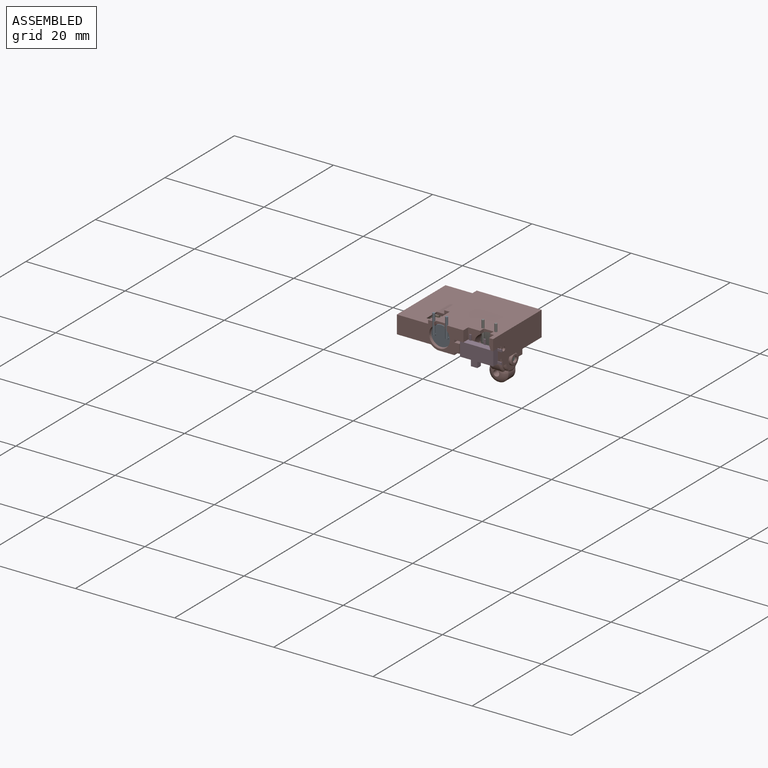
[diagram: assembled view]
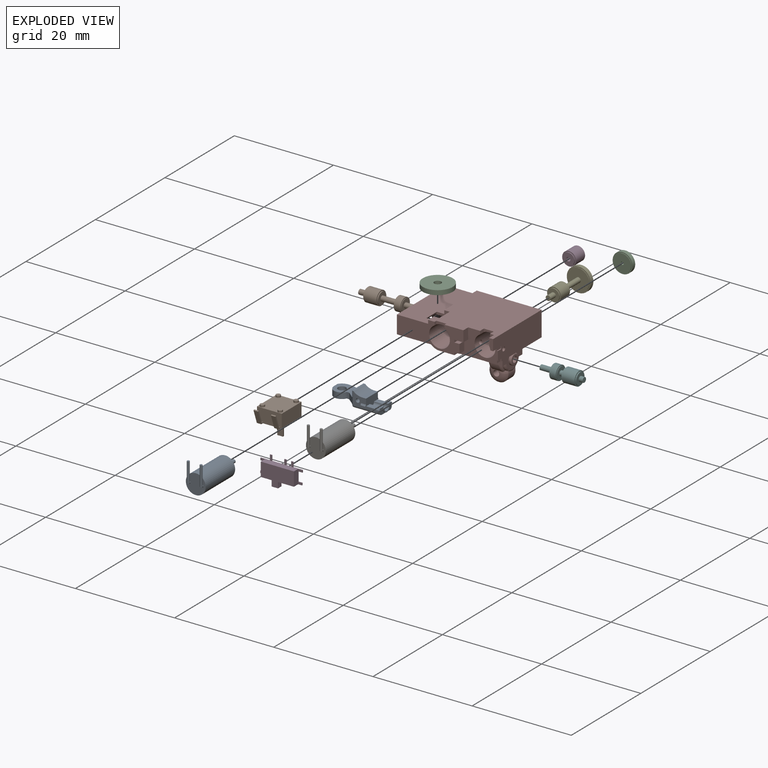
[diagram: exploded view]
GUIDED TOUR — MATED ASSEMBLY (Onshape document ec23bc95570d9c8ad12c1168, AutoMate assembly ec23bc95570d9c8ad12c1168_9f3f0885a3b1d8d422f5f965_d5d199825248745248bcec3c_default)

This assembly has 12 components, labeled P0..P11 below (a component is one placed occurrence of a part; the same part can appear more than once), held together by 23 mates. A mate is a constraint between two components; its type names the relative motion it leaves free:
  FASTENED — locks the two components together rigidly (no relative motion),
  PLANAR — leaves sliding in the plane through the listed point (normal = the listed direction) and rotation about that normal free,
  SLIDER — leaves translation along the listed axis free.
Axis/direction vectors are unit vectors and 'through' points are millimeter coordinates, both in the assembly's world frame.

MATES
  1. PLANAR "Planar 16": P7 <-> P3, direction (1.000, 0.000, 0.000) through (19.40, 0.07, 0.28) mm
  2. PLANAR "Planar 9": P5 <-> P7, direction (1.000, 0.000, 0.000) through (17.70, -0.42, -3.81) mm
  3. PLANAR "Planar 8": P6 <-> P2, direction (0.000, 1.000, 0.000) through (16.78, 5.00, 0.19) mm
  4. SLIDER "Slider 5": P9 <-> P10, axis (0.000, 0.000, 1.000) through (3.10, -0.07, -1.86) mm
  5. PLANAR "Planar 2": P9 <-> P7, direction (1.000, 0.000, 0.000) through (5.60, -0.42, -0.26) mm
  6. PLANAR "Planar 1": P7 <-> P9, direction (0.000, 0.000, -1.000) through (2.88, -1.22, 1.49) mm
  7. SLIDER "Slider 1": P7 <-> P1, axis (-1.000, 0.000, 0.000) through (0.00, 3.93, -2.31) mm
  8. PLANAR "Planar 5": P0 <-> P11, direction (0.000, 1.000, 0.000) through (8.60, 2.50, 0.19) mm
  9. PLANAR "Planar 4": P9 <-> P10, direction (0.000, 0.000, -1.000) through (3.10, -0.07, -1.86) mm
  10. PLANAR "Planar 10": P7 <-> P8, direction (0.000, 0.000, -1.000) through (9.51, -0.42, -2.31) mm
  11. SLIDER "Slider 3": P2 <-> P6, axis (0.000, -1.000, 0.000) through (16.78, 5.30, 0.19) mm
  12. SLIDER "Slider 2": P7 <-> P4, axis (0.000, -1.000, 0.000) through (13.00, 5.08, -1.11) mm
  13. PLANAR "Planar 15": P3 <-> P7, direction (0.000, 0.000, 1.000) through (16.04, -6.69, 0.49) mm
  14. FASTENED "Fastened 2": P6 <-> P7, direction (0.000, -1.000, 0.000) through (16.78, 4.08, 0.19) mm
  15. FASTENED "Fastened 1": P0 <-> P7, direction (0.000, -1.000, 0.000) through (8.60, 1.58, 0.19) mm
  16. PLANAR "Planar 11": P8 <-> P7, direction (0.000, 1.000, 0.000) through (8.43, 1.28, -3.29) mm
  17. PLANAR "Planar 7": P7 <-> P4, direction (0.000, 1.000, 0.000) through (13.00, 5.08, -1.11) mm
  18. PLANAR "Planar 3": P7 <-> P9, direction (0.000, -1.000, 0.000) through (3.10, 2.53, -0.06) mm
  19. PLANAR "Planar 6": P1 <-> P7, direction (1.000, 0.000, 0.000) through (9.30, 3.93, -2.31) mm
  20. PLANAR "Planar 13": P9 <-> P10, direction (0.000, 0.000, -1.000) through (3.10, -0.07, -1.86) mm
  21. SLIDER "Slider 4": P5 <-> P7, axis (-1.000, 0.000, 0.000) through (17.70, -0.42, -3.81) mm
  22. PLANAR "Planar 12": P7 <-> P8, direction (-1.000, 0.000, 0.000) through (6.70, 1.88, -2.86) mm
  23. PLANAR "Planar 14": P7 <-> P3, direction (0.000, -1.000, 0.000) through (14.88, -6.02, -0.41) mm

ASSEMBLY ORDER
  1. P7 — the base component [order heuristic]
  2. P1 — core [order heuristic]
  3. P8 — core [order heuristic]
  4. P5 — core [order heuristic]
  5. P6 — core [order heuristic]
  6. P9 — core [order heuristic]
  7. P4 — core [order heuristic]
  8. P2 — core [order heuristic]
  9. P10 — core [order heuristic]
  10. P3 [order verified]
  11. P0 [order verified]
  12. P11 [order verified]
(P3 verified with a relaxed clearance tolerance: the source model stores slight part interference there.)
Order-tag legend:
  [order verified] — this step's position reverses a verified removal order: the component was checked to insert without passing through the ones already placed.
  [order heuristic] — the first 9 components form the assembly's core: parts whose collision-free extraction could not be verified, listed in mate-graph order.

Of the 12 components, 6 carry the full construction recipe — the FeatureScript program that regenerates the part's solid from scratch; the rest are supplied as boundary geometry only.
Each toured component is shown spotlighted twice — in the assembled view, then in the exploded view, where a leader line traces a displaced component back to its assembled socket (saturated green if recipe-attached, orange if geometry-only; every other component desaturated gray) — followed by its recipe or geometry summary and the mates that hold it.
NOTE — document 2 of 2 of this assembly tour. The two overview renders and the header above are repeated from document 1; the component sections below continue where the previous document stopped.
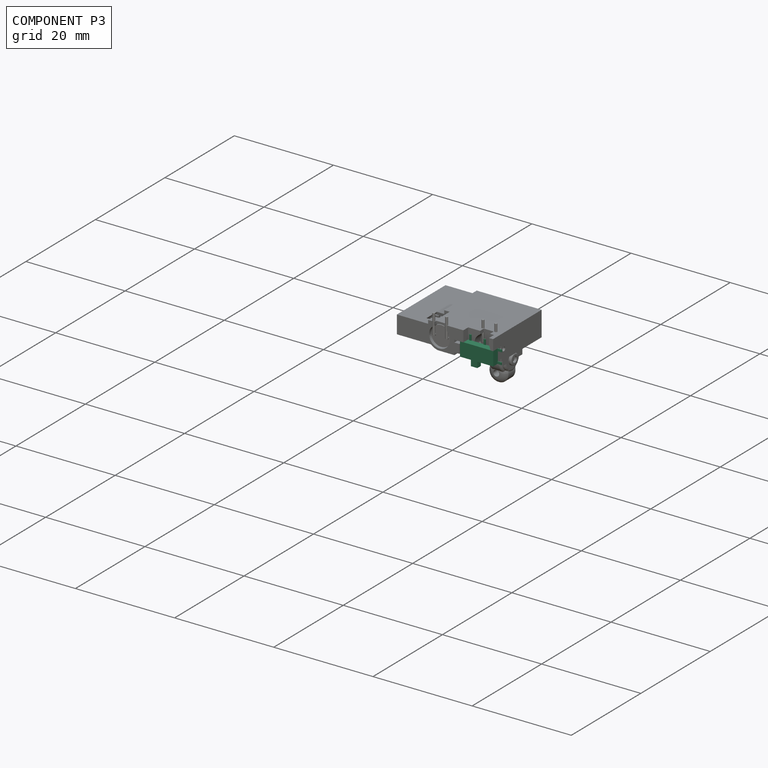
[diagram: component P3 — assembled]
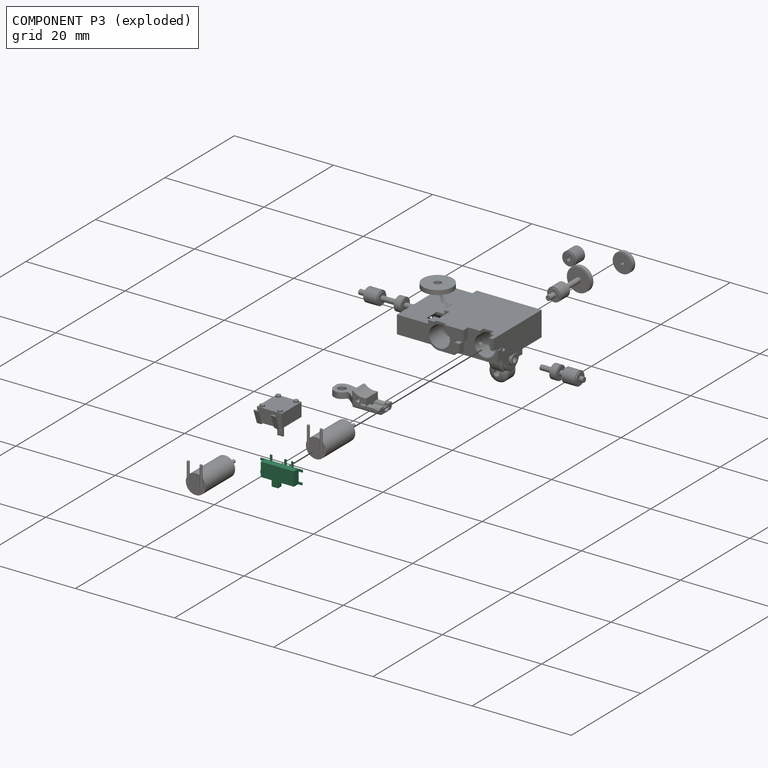
[diagram: component P3 — exploded]
COMPONENT P3 — recipe-attached (CADFS 00296082, mesh-verified: the recipe's output STEP matches this component's geometry to below the mesh-comparison resolution (tessellation chordal tolerance ~0.0152 mm)).
Held by: PLANAR mate "Planar 16" to P7; PLANAR mate "Planar 15" to P7; PLANAR mate "Planar 14" to P7.
Construction recipe (FeatureScript — the CAD program that rebuilds this solid; sketch coordinates are in the units given by the * unit suffixes, e.g. mm):

FeatureScript 1511;
import(path : "onshape/std/geometry.fs", version : "1511.0");
import(path : "onshape/std/common.fs", version : "1511.0");
const mm = millimeter;
const VERTEX = EntityType.VERTEX;
const EDGE = EntityType.EDGE;
const FACE = EntityType.FACE;
const BODY = EntityType.BODY;
function v(x, y){return vector(x, y);}
function OD(order){return orderDisambiguation(order);}
function OSD(set){return originalSetDisambiguation(set);}
function TD(topology){return topologyDisambiguation(topology);}
function TDD(query){return trueDependencyDisambiguation(query);}
function sQuery(a, b, c) {return sketchEntityQuery(a, b, c);}

annotation { "Feature Type Name" : "Feature", "Feature Type Description" : "" }
export const myFeature = defineFeature(function(context is Context, id is Id, definition is map)
    precondition{}
    {
        {
            var Q0;
            Q0=qCreatedBy(makeId("Top.planeOp"),FACE);
            var sketch = newSketch(context, id + "F0", { "sketchPlane" : qUnion([Q0])});
            skLineSegment(sketch, "E0.bottom", {"start": v(0, 0) * mm, "end": v(6.7, 0) * mm});
            skLineSegment(sketch, "E0.top", {"start": v(0, 2.8) * mm, "end": v(6.7, 2.8) * mm});
            skLineSegment(sketch, "E0.left", {"start": v(0, 0) * mm, "end": v(0, 2.8) * mm});
            skLineSegment(sketch, "E0.right", {"start": v(6.7, 0) * mm, "end": v(6.7, 2.8) * mm});
            skSolve(sketch);
        }
        {
            var Q0;
            Q0 = qSketchRegion(id + "F0", true);
            extrude(context, id + "F1", {"entities" : qUnion([Q0]), "depth" : 1.35 * mm});
        }
        {
            var Q0;
            Q0=qCreatedBy(makeId("Top.planeOp"),FACE);
            var sketch = newSketch(context, id + "F2", { "sketchPlane" : qUnion([Q0])});
            skLineSegment(sketch, "E1.bottom", {"start": v(5.7, 2.8) * mm, "end": v(5.3, 2.8) * mm});
            skLineSegment(sketch, "E1.top", {"start": v(5.7, 3.8) * mm, "end": v(5.3, 3.8) * mm});
            skLineSegment(sketch, "E1.left", {"start": v(5.7, 2.8) * mm, "end": v(5.7, 3.8) * mm});
            skLineSegment(sketch, "E1.right", {"start": v(5.3, 2.8) * mm, "end": v(5.3, 3.8) * mm});
            skLineSegment(sketch, "E2.bottom", {"start": v(4.3, 2.8) * mm, "end": v(3.9, 2.8) * mm});
            skLineSegment(sketch, "E2.top", {"start": v(4.3, 3.82) * mm, "end": v(3.9, 3.82) * mm});
            skLineSegment(sketch, "E2.left", {"start": v(4.3, 2.8) * mm, "end": v(4.3, 3.82) * mm});
            skLineSegment(sketch, "E2.right", {"start": v(3.9, 2.8) * mm, "end": v(3.9, 3.82) * mm});
            skLineSegment(sketch, "E3.bottom", {"start": v(1.4, 2.8) * mm, "end": v(1, 2.8) * mm});
            skLineSegment(sketch, "E3.top", {"start": v(1.4, 3.88) * mm, "end": v(1, 3.88) * mm});
            skLineSegment(sketch, "E3.left", {"start": v(1.4, 2.8) * mm, "end": v(1.4, 3.88) * mm});
            skLineSegment(sketch, "E3.right", {"start": v(1, 2.8) * mm, "end": v(1, 3.88) * mm});
            skLineSegment(sketch, "E4.bottom", {"start": v(6.7, 2.8) * mm, "end": v(7.58, 2.8) * mm});
            skLineSegment(sketch, "E4.top", {"start": v(6.7, 2.35) * mm, "end": v(7.58, 2.35) * mm});
            skLineSegment(sketch, "E4.left", {"start": v(6.7, 2.8) * mm, "end": v(6.7, 2.35) * mm});
            skLineSegment(sketch, "E4.right", {"start": v(7.58, 2.8) * mm, "end": v(7.58, 2.35) * mm});
            skLineSegment(sketch, "E5.bottom", {"start": v(6.7, 0.45) * mm, "end": v(7.5, 0.45) * mm});
            skLineSegment(sketch, "E5.top", {"start": v(6.7, 0) * mm, "end": v(7.5, 0) * mm});
            skLineSegment(sketch, "E5.left", {"start": v(6.7, 0.45) * mm, "end": v(6.7, 0) * mm});
            skLineSegment(sketch, "E5.right", {"start": v(7.5, 0.45) * mm, "end": v(7.5, 0) * mm});
            skLineSegment(sketch, "E6.bottom", {"start": v(0, 2.8) * mm, "end": v(-0.9, 2.8) * mm});
            skLineSegment(sketch, "E6.top", {"start": v(0, 2.35) * mm, "end": v(-0.9, 2.35) * mm});
            skLineSegment(sketch, "E6.left", {"start": v(0, 2.8) * mm, "end": v(0, 2.35) * mm});
            skLineSegment(sketch, "E6.right", {"start": v(-0.9, 2.8) * mm, "end": v(-0.9, 2.35) * mm});
            skLineSegment(sketch, "E7.bottom", {"start": v(0, 0.45) * mm, "end": v(-0.93, 0.45) * mm});
            skLineSegment(sketch, "E7.top", {"start": v(0, 0) * mm, "end": v(-0.93, 0) * mm});
            skLineSegment(sketch, "E7.left", {"start": v(0, 0.45) * mm, "end": v(0, 0) * mm});
            skLineSegment(sketch, "E7.right", {"start": v(-0.93, 0.45) * mm, "end": v(-0.93, 0) * mm});
            skSolve(sketch);
        }
        {
            var Q0;
            Q0 = qSketchRegion(id + "F2", true);
            extrude(context, id + "F3", {"entities" : qUnion([Q0]), "operationType" : NewBodyOperationType.ADD, "depth" : 0.15 * mm});
        }
        {
            var Q0;
            Q0=qCreatedBy(makeId("Top.planeOp"),FACE);
            var sketch = newSketch(context, id + "F4", { "sketchPlane" : qUnion([Q0])});
            skLineSegment(sketch, "E8.bottom", {"start": v(1.95, 0) * mm, "end": v(3.25, 0) * mm});
            skLineSegment(sketch, "E8.top", {"start": v(1.95, -1.35) * mm, "end": v(3.25, -1.35) * mm});
            skLineSegment(sketch, "E8.left", {"start": v(1.95, 0) * mm, "end": v(1.95, -1.35) * mm});
            skLineSegment(sketch, "E8.right", {"start": v(3.25, 0) * mm, "end": v(3.25, -1.35) * mm});
            skSolve(sketch);
        }
        {
            var Q0;
            Q0 = qSketchRegion(id + "F4", true);
            extrude(context, id + "F5", {"entities" : qUnion([Q0]), "operationType" : NewBodyOperationType.ADD, "depth" : 1 * mm});
        }
        {
            var Q0;
            Q0=makeQuery(id+"F5.boolean.opBoolean","MERGE",FACE,{"derivedFrom":[makeQuery(id+"F3.boolean.opBoolean","MERGE",FACE,{"derivedFrom":[makeQuery(id+"F1.opExtrude","CAP_FACE",FACE,{"disambiguationData":[OSD([sQuery(id+"F0.wireOp",EDGE,"E0.bottom"),sQuery(id+"F0.wireOp",EDGE,"E0.top"),sQuery(id+"F0.wireOp",EDGE,"E0.left"),sQuery(id+"F0.wireOp",EDGE,"E0.right")])],"isStart":true}),makeQuery(id+"F3.opExtrude","CAP_FACE",FACE,{"disambiguationData":[OSD([sQuery(id+"F2.wireOp",EDGE,"E1.bottom"),sQuery(id+"F2.wireOp",EDGE,"E1.top"),sQuery(id+"F2.wireOp",EDGE,"E1.left"),sQuery(id+"F2.wireOp",EDGE,"E1.right")])],"isStart":true}),makeQuery(id+"F3.opExtrude","CAP_FACE",FACE,{"disambiguationData":[OSD([sQuery(id+"F2.wireOp",EDGE,"E2.bottom"),sQuery(id+"F2.wireOp",EDGE,"E2.top"),sQuery(id+"F2.wireOp",EDGE,"E2.left"),sQuery(id+"F2.wireOp",EDGE,"E2.right")])],"isStart":true}),makeQuery(id+"F3.opExtrude","CAP_FACE",FACE,{"disambiguationData":[OSD([sQuery(id+"F2.wireOp",EDGE,"E3.bottom"),sQuery(id+"F2.wireOp",EDGE,"E3.top"),sQuery(id+"F2.wireOp",EDGE,"E3.left"),sQuery(id+"F2.wireOp",EDGE,"E3.right")])],"isStart":true}),makeQuery(id+"F3.opExtrude","CAP_FACE",FACE,{"disambiguationData":[OSD([sQuery(id+"F2.wireOp",EDGE,"E4.bottom"),sQuery(id+"F2.wireOp",EDGE,"E4.top"),sQuery(id+"F2.wireOp",EDGE,"E4.left"),sQuery(id+"F2.wireOp",EDGE,"E4.right")])],"isStart":true}),makeQuery(id+"F3.opExtrude","CAP_FACE",FACE,{"disambiguationData":[OSD([sQuery(id+"F2.wireOp",EDGE,"E5.bottom"),sQuery(id+"F2.wireOp",EDGE,"E5.top"),sQuery(id+"F2.wireOp",EDGE,"E5.left"),sQuery(id+"F2.wireOp",EDGE,"E5.right")])],"isStart":true}),makeQuery(id+"F3.opExtrude","CAP_FACE",FACE,{"disambiguationData":[OSD([sQuery(id+"F2.wireOp",EDGE,"E6.bottom"),sQuery(id+"F2.wireOp",EDGE,"E6.top"),sQuery(id+"F2.wireOp",EDGE,"E6.left"),sQuery(id+"F2.wireOp",EDGE,"E6.right")])],"isStart":true}),makeQuery(id+"F3.opExtrude","CAP_FACE",FACE,{"disambiguationData":[OSD([sQuery(id+"F2.wireOp",EDGE,"E7.bottom"),sQuery(id+"F2.wireOp",EDGE,"E7.top"),sQuery(id+"F2.wireOp",EDGE,"E7.left"),sQuery(id+"F2.wireOp",EDGE,"E7.right")])],"isStart":true})]}),makeQuery(id+"F5.opExtrude","CAP_FACE",FACE,{"disambiguationData":[OSD([sQuery(id+"F4.wireOp",EDGE,"E8.bottom"),sQuery(id+"F4.wireOp",EDGE,"E8.top"),sQuery(id+"F4.wireOp",EDGE,"E8.left"),sQuery(id+"F4.wireOp",EDGE,"E8.right")])],"isStart":true})]});
            var sketch = newSketch(context, id + "F6", { "sketchPlane" : qUnion([Q0])});
            skCircle(sketch, "E9", {"center": v(4.85, -1.4) * mm, "radius": 0.42 * mm});
            skCircle(sketch, "E10", {"center": v(1.85, -1.4) * mm, "radius": 0.42 * mm});
            skLineSegment(sketch, "E11", {"start": v(1.85, -1.4) * mm, "end": v(4.85, -1.4) * mm, "construction": true});
            skSolve(sketch);
        }
        {
            var Q0;
            Q0 = qSketchRegion(id + "F6", true);
            extrude(context, id + "F7", {"entities" : qUnion([Q0]), "operationType" : NewBodyOperationType.ADD, "depth" : 0.5 * mm});
        }
    });
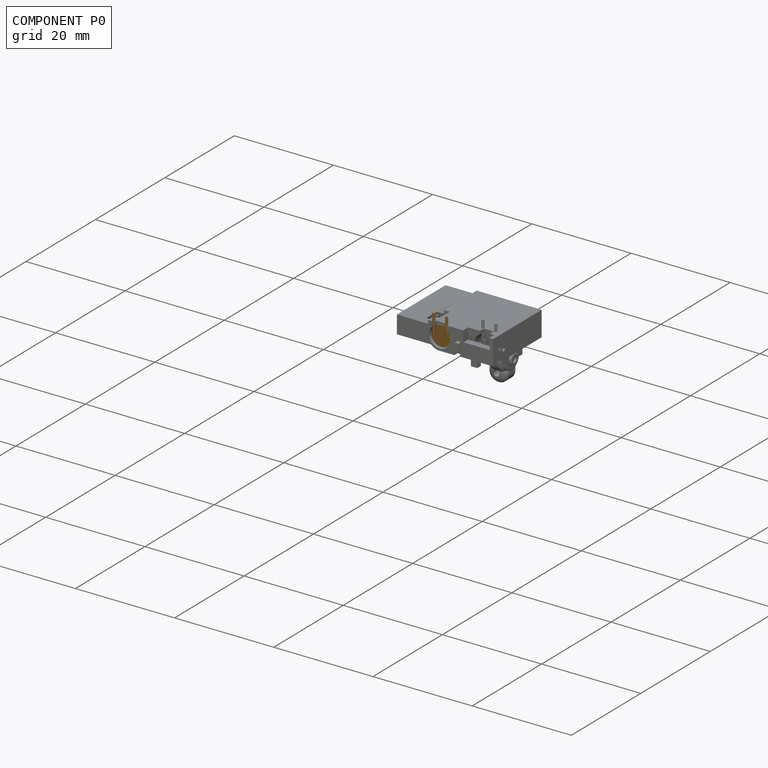
[diagram: component P0 — assembled]
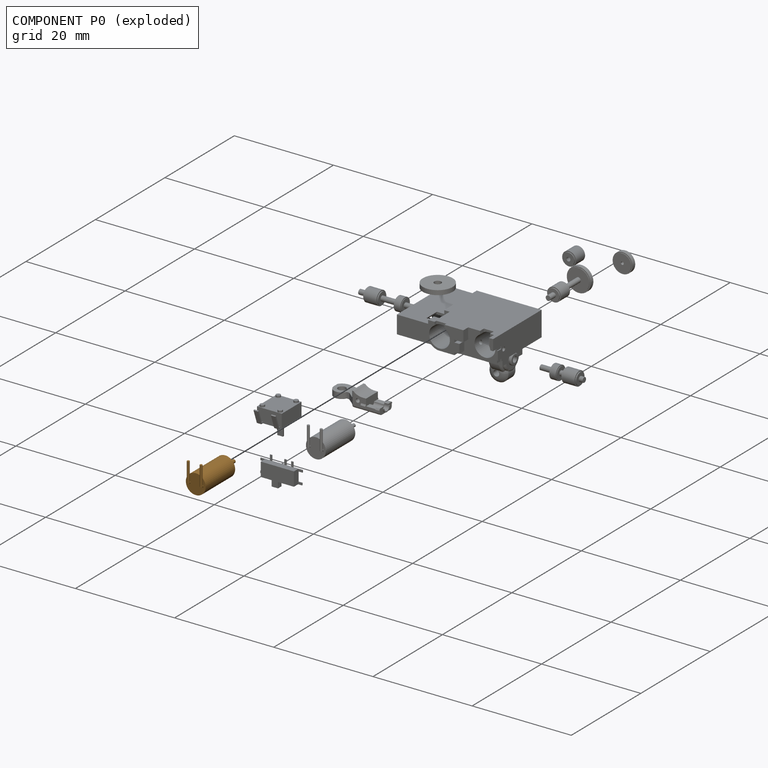
[diagram: component P0 — exploded]
COMPONENT P0 — geometry summary (no construction recipe available for this part):
  bounding box: 11.6 x 6.0 x 4.0 mm
  B-rep topology: 1 solid, 17 faces, 52 edges
  volume: 113 mm^3 (41% of its bounding box)
  symmetry: mirror-symmetric across its x mid-plane
Held by: PLANAR mate "Planar 5" to P11; FASTENED mate "Fastened 1" to P7.
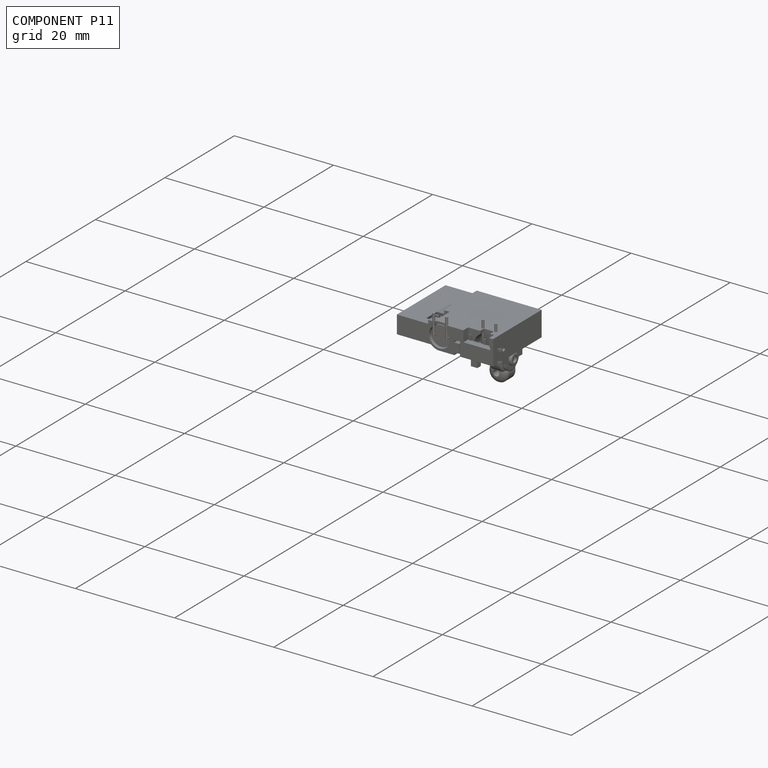
[diagram: component P11 — assembled]
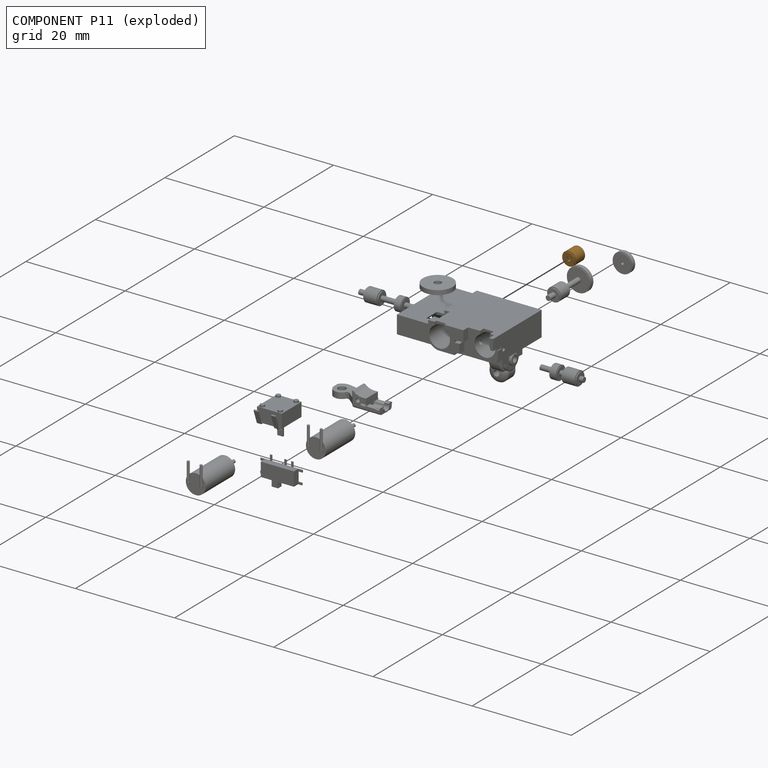
[diagram: component P11 — exploded]
COMPONENT P11 — geometry summary (no construction recipe available for this part):
  bounding box: 3.0 x 2.8 x 2.8 mm
  B-rep topology: 1 solid, 8 faces, 24 edges
  volume: 16 mm^3 (69% of its bounding box)
  symmetry: 2-fold rotationally symmetric about the x axis; revolution-symmetric about the y axis through its bounding-box center; 2-fold rotationally symmetric about the z axis; mirror-symmetric across its x mid-plane, y mid-plane, z mid-plane
Held by: PLANAR mate "Planar 5" to P0.
PROVENANCE & LICENSES
Assembly (occurrences, transforms, mates, per-part STEP geometry): AutoMate dataset, Zenodo record 7776208, CC0.
Construction recipes: CADFS (HuggingFace VladPyatov/CADFS, CC-BY-4.0, layered over the ABC dataset), FeatureScript reconstruction programs keyed by ABC model id.
Join: ABC meta listings map ABC model id -> Onshape documentId; within a shared document, parts are matched by geometric signature (bounding-box dims + volume at 0.1% relative tolerance, exact B-rep face/solid counts).
Verification: 6 of this assembly's 12 components carry a recipe attachment, and every attachment is mesh-verified: the CADFS STEP and the AutoMate member STEP were compared as meshes in their shared local frame (symmetric sampled-point-to-mesh distance); worst across the 6 attachments: below the mesh-comparison resolution (tessellation chordal tolerance ~0.0181 mm) on a 12 mm part.
Renders: orthographic iso camera (az 35 / el 25); the floor grid conveys scale (grid pitch printed in each image; no ruler). In the exploded view each component is displaced by its stored offset vector: the offsets alone carry the explosion direction (mate normal/axis signs are not orientation cues and do not encode it), and separation distances are assigned per mate-chain, not proportionally to assembly-order depth.
